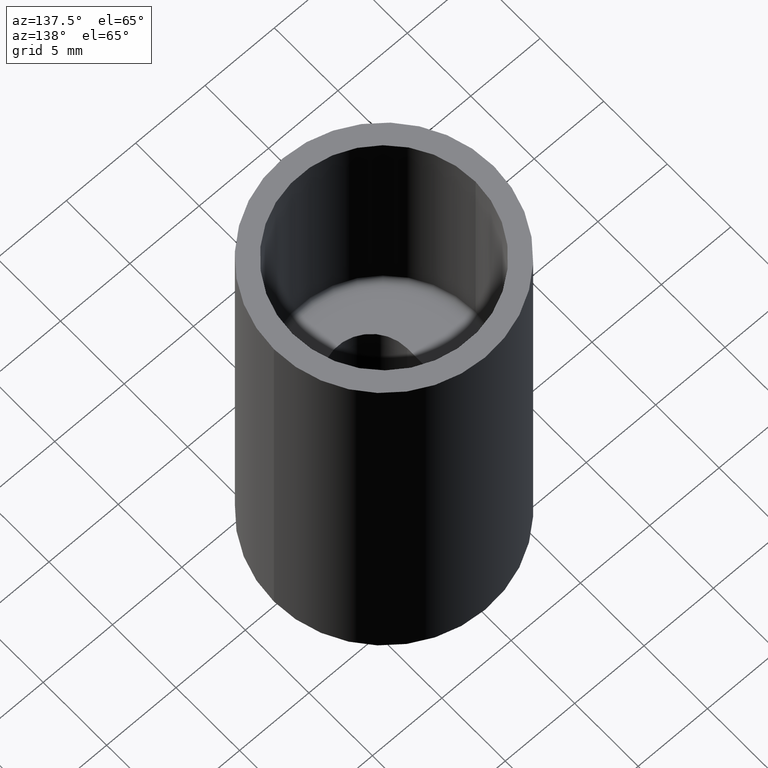
[diagram: clean part render]
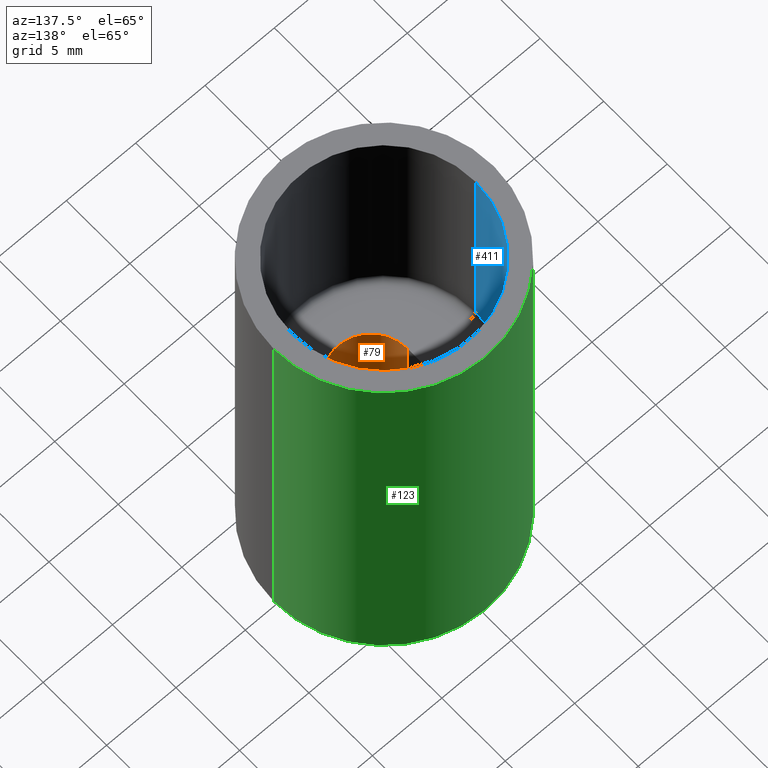
[diagram: same view with three faces highlighted in distinct colors, each labeled with its STEP entity id]
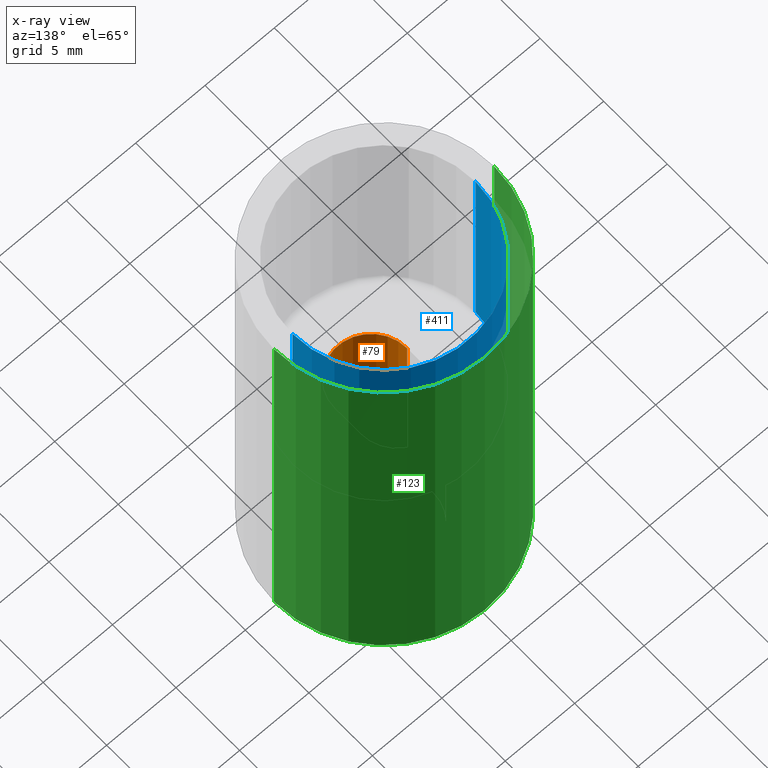
[diagram: x-ray of the same camera — body ghosted, the three highlighted faces saturated]
A machine part, auxiliary view with three faces highlighted in distinct colors.
The next image is the same camera in x-ray (body ghosted, the three faces saturated) — at least one of them is partly hidden behind the body in this view.
Their STEP definitions:

[orange] entity #79 — the highlighted cylindrical surface (partial cylindrical patch) has radius 2.6035 mm, axis along (0, 0, 1).
#15 = CARTESIAN_POINT ( 'NONE',  ( 0.1025000000000000200, -0.03999999999999998000, -0.6600000000000000300 ) ) ;
#30 = CARTESIAN_POINT ( 'NONE',  ( -0.1024999999999999900, -0.04000000000000001500, -1.250000000000000000 ) ) ;
#37 = VERTEX_POINT ( 'NONE', #152 ) ;
#42 = DIRECTION ( 'NONE',  ( 1.000000000000000000, 0.0000000000000000000, 0.0000000000000000000 ) ) ;
#46 = CIRCLE ( 'NONE', #118, 0.1024999999999999900 ) ;
#50 = LINE ( 'NONE', #30, #397 ) ;
#58 = CARTESIAN_POINT ( 'NONE',  ( 0.1025000000000000200, -0.03999999999999998000, -1.250000000000000000 ) ) ;
#67 = ORIENTED_EDGE ( 'NONE', *, *, #325, .T. ) ;
#68 = CYLINDRICAL_SURFACE ( 'NONE', #172, 0.1024999999999999900 ) ;
#77 = CARTESIAN_POINT ( 'NONE',  ( 2.234980408443919300E-017, -0.04000000000000000100, -1.250000000000000000 ) ) ;
#79 = ADVANCED_FACE ( 'NONE', ( #260 ), #68, .F. ) ;
#93 = DIRECTION ( 'NONE',  ( 0.0000000000000000000, 0.0000000000000000000, 1.000000000000000000 ) ) ;
#97 = AXIS2_PLACEMENT_3D ( 'NONE', #398, #241, #306 ) ;
#104 = VERTEX_POINT ( 'NONE', #177 ) ;
#111 = VERTEX_POINT ( 'NONE', #156 ) ;
#118 = AXIS2_PLACEMENT_3D ( 'NONE', #326, #369, #240 ) ;
#135 = EDGE_LOOP ( 'NONE', ( #170, #268, #202, #67 ) ) ;
#152 = CARTESIAN_POINT ( 'NONE',  ( -0.1024999999999999900, -0.04000000000000001500, -1.250000000000000000 ) ) ;
#153 = VECTOR ( 'NONE', #227, 39.37007874015748100 ) ;
#156 = CARTESIAN_POINT ( 'NONE',  ( 0.1025000000000000200, -0.04000000000000000100, -1.250000000000000000 ) ) ;
#162 = CIRCLE ( 'NONE', #97, 0.1024999999999999900 ) ;
#164 = EDGE_CURVE ( 'NONE', #104, #365, #162, .T. ) ;
#170 = ORIENTED_EDGE ( 'NONE', *, *, #164, .T. ) ;
#172 = AXIS2_PLACEMENT_3D ( 'NONE', #77, #93, #42 ) ;
#177 = CARTESIAN_POINT ( 'NONE',  ( -0.1024999999999999900, -0.04000000000000001500, -0.6600000000000000300 ) ) ;
#201 = DIRECTION ( 'NONE',  ( 0.0000000000000000000, 0.0000000000000000000, 1.000000000000000000 ) ) ;
#202 = ORIENTED_EDGE ( 'NONE', *, *, #386, .F. ) ;
#225 = EDGE_CURVE ( 'NONE', #111, #365, #310, .T. ) ;
#227 = DIRECTION ( 'NONE',  ( 0.0000000000000000000, 0.0000000000000000000, 1.000000000000000000 ) ) ;
#240 = DIRECTION ( 'NONE',  ( 1.000000000000000000, 0.0000000000000000000, 0.0000000000000000000 ) ) ;
#241 = DIRECTION ( 'NONE',  ( -0.0000000000000000000, 0.0000000000000000000, 1.000000000000000000 ) ) ;
#260 = FACE_OUTER_BOUND ( 'NONE', #135, .T. ) ;
#268 = ORIENTED_EDGE ( 'NONE', *, *, #225, .F. ) ;
#306 = DIRECTION ( 'NONE',  ( 1.000000000000000000, 0.0000000000000000000, 0.0000000000000000000 ) ) ;
#310 = LINE ( 'NONE', #58, #153 ) ;
#325 = EDGE_CURVE ( 'NONE', #37, #104, #50, .T. ) ;
#326 = CARTESIAN_POINT ( 'NONE',  ( 2.234980408443919300E-017, -0.04000000000000000100, -1.250000000000000000 ) ) ;
#365 = VERTEX_POINT ( 'NONE', #15 ) ;
#369 = DIRECTION ( 'NONE',  ( -0.0000000000000000000, 0.0000000000000000000, 1.000000000000000000 ) ) ;
#386 = EDGE_CURVE ( 'NONE', #37, #111, #46, .T. ) ;
#397 = VECTOR ( 'NONE', #201, 39.37007874015748100 ) ;
#398 = CARTESIAN_POINT ( 'NONE',  ( 2.234980408443919300E-017, -0.04000000000000000100, -0.6600000000000000300 ) ) ;

[blue] entity #411 — the highlighted cylindrical surface (partial cylindrical patch) has radius 6.604 mm, axis along (-0, -0, 1).
#10 = EDGE_CURVE ( 'NONE', #80, #418, #106, .T. ) ;
#34 = FACE_OUTER_BOUND ( 'NONE', #219, .T. ) ;
#41 = DIRECTION ( 'NONE',  ( 1.000000000000000000, 0.0000000000000000000, 0.0000000000000000000 ) ) ;
#80 = VERTEX_POINT ( 'NONE', #341 ) ;
#92 = ORIENTED_EDGE ( 'NONE', *, *, #10, .T. ) ;
#95 = VERTEX_POINT ( 'NONE', #282 ) ;
#103 = AXIS2_PLACEMENT_3D ( 'NONE', #348, #401, #41 ) ;
#106 = CIRCLE ( 'NONE', #183, 0.2600000000000000100 ) ;
#127 = ORIENTED_EDGE ( 'NONE', *, *, #390, .T. ) ;
#129 = CARTESIAN_POINT ( 'NONE',  ( 0.2600000000000000100, 0.0000000000000000000, -0.6600000000000000300 ) ) ;
#134 = DIRECTION ( 'NONE',  ( 1.000000000000000000, 0.0000000000000000000, 0.0000000000000000000 ) ) ;
#167 = CARTESIAN_POINT ( 'NONE',  ( 0.0000000000000000000, 0.0000000000000000000, -0.6450000000000001300 ) ) ;
#183 = AXIS2_PLACEMENT_3D ( 'NONE', #167, #263, #134 ) ;
#193 = CIRCLE ( 'NONE', #103, 0.2600000000000000100 ) ;
#215 = CARTESIAN_POINT ( 'NONE',  ( 0.0000000000000000000, 0.0000000000000000000, -0.6600000000000000300 ) ) ;
#219 = EDGE_LOOP ( 'NONE', ( #420, #92, #127, #229 ) ) ;
#224 = CYLINDRICAL_SURFACE ( 'NONE', #387, 0.2600000000000000100 ) ;
#229 = ORIENTED_EDGE ( 'NONE', *, *, #270, .T. ) ;
#247 = LINE ( 'NONE', #129, #381 ) ;
#253 = VECTOR ( 'NONE', #374, 39.37007874015748100 ) ;
#263 = DIRECTION ( 'NONE',  ( 0.0000000000000000000, -0.0000000000000000000, -1.000000000000000000 ) ) ;
#265 = DIRECTION ( 'NONE',  ( 1.000000000000000000, 0.0000000000000000000, 0.0000000000000000000 ) ) ;
#270 = EDGE_CURVE ( 'NONE', #313, #95, #193, .T. ) ;
#273 = LINE ( 'NONE', #340, #253 ) ;
#282 = CARTESIAN_POINT ( 'NONE',  ( -0.2600000000000000100, 3.184081677783118700E-017, 0.0000000000000000000 ) ) ;
#284 = DIRECTION ( 'NONE',  ( -0.0000000000000000000, -0.0000000000000000000, 1.000000000000000000 ) ) ;
#313 = VERTEX_POINT ( 'NONE', #352 ) ;
#335 = CARTESIAN_POINT ( 'NONE',  ( 0.2600000000000000100, 0.0000000000000000000, -0.6450000000000001300 ) ) ;
#338 = DIRECTION ( 'NONE',  ( -0.0000000000000000000, -0.0000000000000000000, 1.000000000000000000 ) ) ;
#340 = CARTESIAN_POINT ( 'NONE',  ( -0.2600000000000000100, 3.184081677783118700E-017, -0.6600000000000000300 ) ) ;
#341 = CARTESIAN_POINT ( 'NONE',  ( -0.2600000000000000100, 3.184081677783118700E-017, -0.6450000000000001300 ) ) ;
#348 = CARTESIAN_POINT ( 'NONE',  ( 0.0000000000000000000, 0.0000000000000000000, 0.0000000000000000000 ) ) ;
#352 = CARTESIAN_POINT ( 'NONE',  ( 0.2600000000000000100, 0.0000000000000000000, 0.0000000000000000000 ) ) ;
#368 = EDGE_CURVE ( 'NONE', #80, #95, #273, .T. ) ;
#374 = DIRECTION ( 'NONE',  ( -0.0000000000000000000, -0.0000000000000000000, 1.000000000000000000 ) ) ;
#381 = VECTOR ( 'NONE', #338, 39.37007874015748100 ) ;
#387 = AXIS2_PLACEMENT_3D ( 'NONE', #215, #284, #265 ) ;
#390 = EDGE_CURVE ( 'NONE', #418, #313, #247, .T. ) ;
#401 = DIRECTION ( 'NONE',  ( -0.0000000000000000000, 0.0000000000000000000, 1.000000000000000000 ) ) ;
#411 = ADVANCED_FACE ( 'NONE', ( #34 ), #224, .F. ) ;
#418 = VERTEX_POINT ( 'NONE', #335 ) ;
#420 = ORIENTED_EDGE ( 'NONE', *, *, #368, .F. ) ;

[green] entity #123 — the highlighted cylindrical surface (partial cylindrical patch) has radius 7.9375 mm, axis along (0, 0, 1).
#4 = CARTESIAN_POINT ( 'NONE',  ( 0.3125000000000000000, 0.0000000000000000000, 0.0000000000000000000 ) ) ;
#13 = FACE_OUTER_BOUND ( 'NONE', #49, .T. ) ;
#22 = CYLINDRICAL_SURFACE ( 'NONE', #314, 0.3125000000000000000 ) ;
#48 = DIRECTION ( 'NONE',  ( 0.0000000000000000000, 0.0000000000000000000, 1.000000000000000000 ) ) ;
#49 = EDGE_LOOP ( 'NONE', ( #245, #275, #267, #59 ) ) ;
#54 = DIRECTION ( 'NONE',  ( 0.0000000000000000000, 0.0000000000000000000, 1.000000000000000000 ) ) ;
#59 = ORIENTED_EDGE ( 'NONE', *, *, #323, .F. ) ;
#60 = VERTEX_POINT ( 'NONE', #4 ) ;
#64 = AXIS2_PLACEMENT_3D ( 'NONE', #71, #54, #272 ) ;
#70 = LINE ( 'NONE', #353, #140 ) ;
#71 = CARTESIAN_POINT ( 'NONE',  ( 0.0000000000000000000, 0.0000000000000000000, -1.250000000000000000 ) ) ;
#114 = CARTESIAN_POINT ( 'NONE',  ( -0.3125000000000000000, 3.827021247335478900E-017, -1.250000000000000000 ) ) ;
#123 = ADVANCED_FACE ( 'NONE', ( #13 ), #22, .T. ) ;
#132 = LINE ( 'NONE', #139, #363 ) ;
#139 = CARTESIAN_POINT ( 'NONE',  ( 0.3125000000000000000, 0.0000000000000000000, -1.250000000000000000 ) ) ;
#140 = VECTOR ( 'NONE', #298, 39.37007874015748100 ) ;
#144 = DIRECTION ( 'NONE',  ( 1.000000000000000000, 0.0000000000000000000, 0.0000000000000000000 ) ) ;
#146 = DIRECTION ( 'NONE',  ( 0.0000000000000000000, 0.0000000000000000000, 1.000000000000000000 ) ) ;
#179 = DIRECTION ( 'NONE',  ( 1.000000000000000000, 0.0000000000000000000, 0.0000000000000000000 ) ) ;
#190 = EDGE_CURVE ( 'NONE', #60, #370, #305, .T. ) ;
#192 = CARTESIAN_POINT ( 'NONE',  ( -0.3125000000000000000, 3.827021247335478900E-017, 0.0000000000000000000 ) ) ;
#199 = CIRCLE ( 'NONE', #64, 0.3125000000000000000 ) ;
#231 = AXIS2_PLACEMENT_3D ( 'NONE', #346, #146, #179 ) ;
#245 = ORIENTED_EDGE ( 'NONE', *, *, #351, .T. ) ;
#258 = CARTESIAN_POINT ( 'NONE',  ( 0.3125000000000000000, 0.0000000000000000000, -1.250000000000000000 ) ) ;
#267 = ORIENTED_EDGE ( 'NONE', *, *, #190, .F. ) ;
#272 = DIRECTION ( 'NONE',  ( 1.000000000000000000, 0.0000000000000000000, 0.0000000000000000000 ) ) ;
#274 = CARTESIAN_POINT ( 'NONE',  ( 0.0000000000000000000, 0.0000000000000000000, -1.250000000000000000 ) ) ;
#275 = ORIENTED_EDGE ( 'NONE', *, *, #362, .T. ) ;
#298 = DIRECTION ( 'NONE',  ( 0.0000000000000000000, 0.0000000000000000000, 1.000000000000000000 ) ) ;
#305 = CIRCLE ( 'NONE', #231, 0.3125000000000000000 ) ;
#314 = AXIS2_PLACEMENT_3D ( 'NONE', #274, #48, #144 ) ;
#323 = EDGE_CURVE ( 'NONE', #336, #60, #132, .T. ) ;
#336 = VERTEX_POINT ( 'NONE', #258 ) ;
#337 = VERTEX_POINT ( 'NONE', #114 ) ;
#346 = CARTESIAN_POINT ( 'NONE',  ( 0.0000000000000000000, 0.0000000000000000000, 0.0000000000000000000 ) ) ;
#351 = EDGE_CURVE ( 'NONE', #336, #337, #199, .T. ) ;
#353 = CARTESIAN_POINT ( 'NONE',  ( -0.3125000000000000000, 3.827021247335478900E-017, -1.250000000000000000 ) ) ;
#362 = EDGE_CURVE ( 'NONE', #337, #370, #70, .T. ) ;
#363 = VECTOR ( 'NONE', #379, 39.37007874015748100 ) ;
#370 = VERTEX_POINT ( 'NONE', #192 ) ;
#379 = DIRECTION ( 'NONE',  ( 0.0000000000000000000, 0.0000000000000000000, 1.000000000000000000 ) ) ;